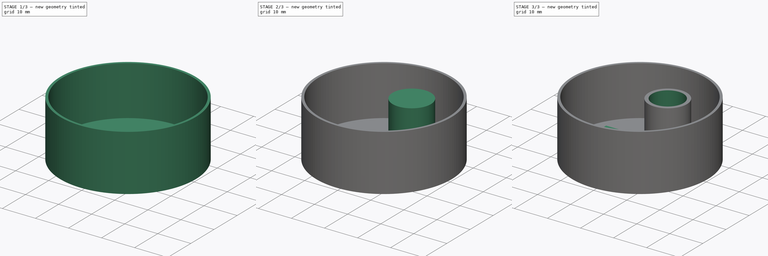
[diagram: build sequence overview — one tinted view per stage of 3, left to right]
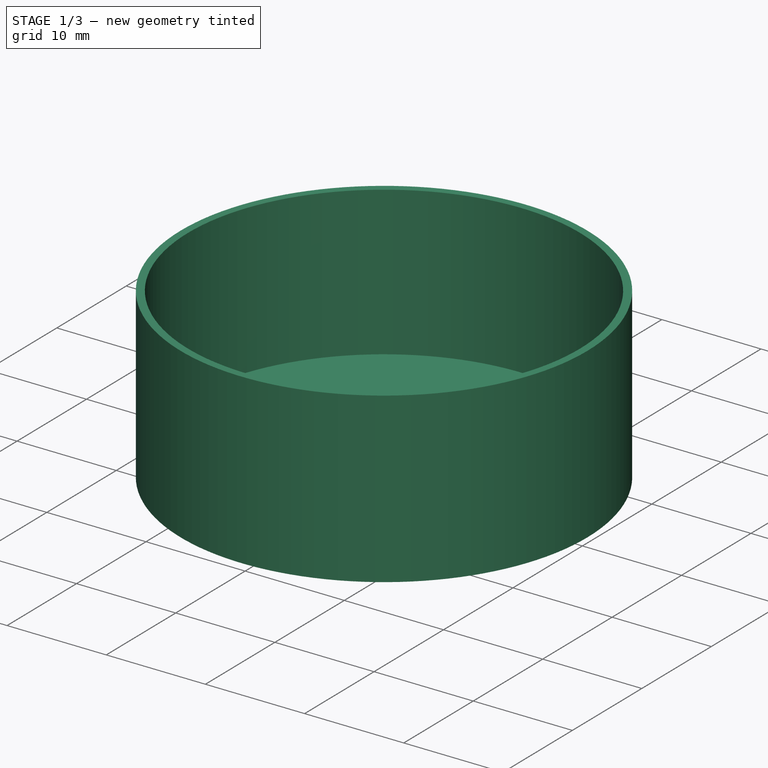
[diagram: stage 1 of 3 — iso view after this stage's code; geometry added in this stage tinted green]
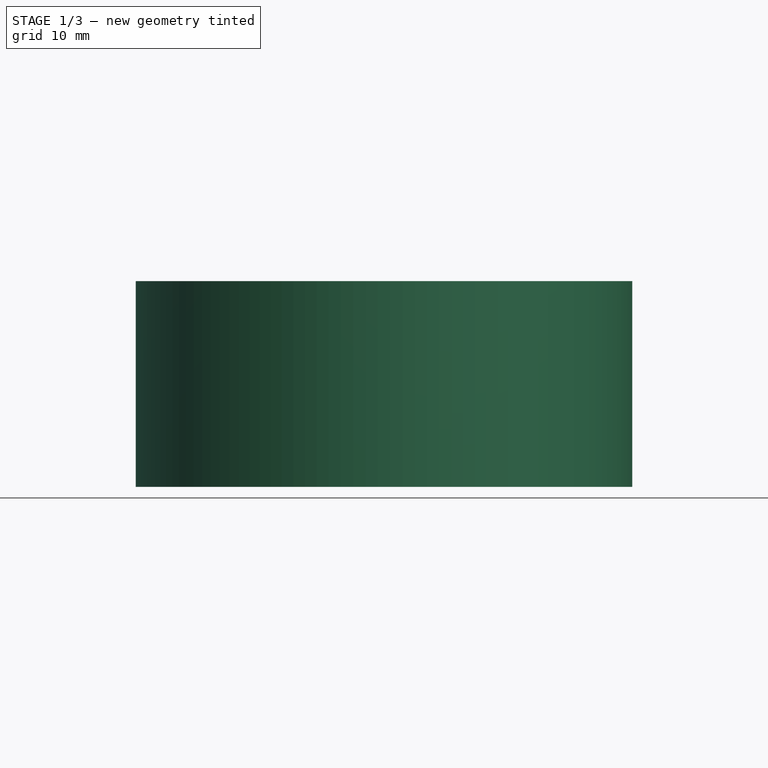
[diagram: stage 1 of 3 — front view after this stage's code; geometry added in this stage tinted green]
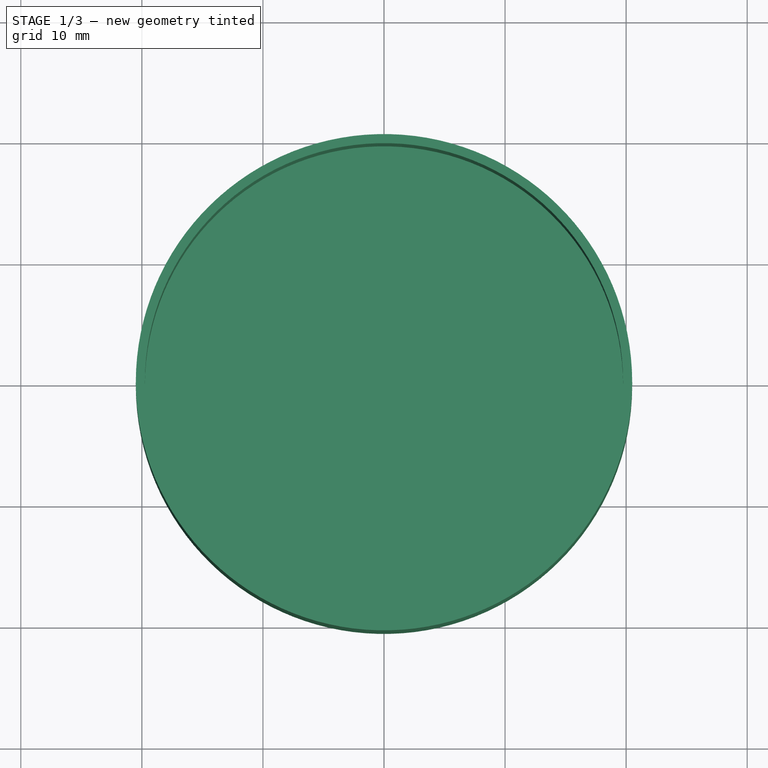
[diagram: stage 1 of 3 — top view after this stage's code; geometry added in this stage tinted green]
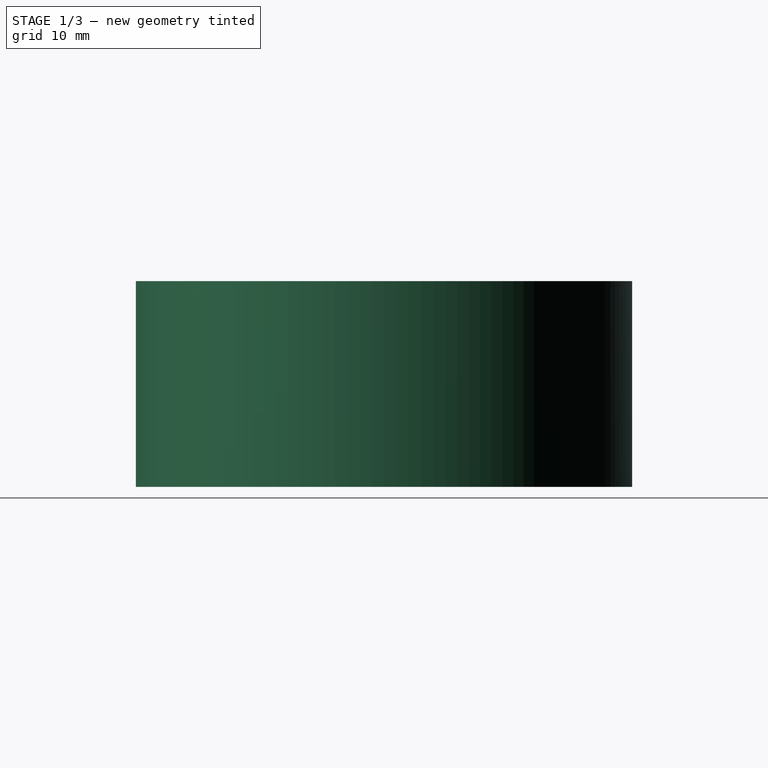
[diagram: stage 1 of 3 — right view after this stage's code; geometry added in this stage tinted green]
FCSTD DOCUMENT  (FreeCAD 0.19R)
Label: tampa_garrafao
License: All rights reserved
LicenseURL: http://en.wikipedia.org/wiki/All_rights_reserved
objects: Sketcher::SketchObject×6, PartDesign::Pad×3, PartDesign::Pocket×3, PartDesign::Body×1
note: 19 computed .brp shape members not serialized (recipe doc carries the construction recipe); baked Part::Feature solids carry a one-line shape summary decoded from their .brp

FEATURE [Sketcher::SketchObject] Sketch
  FullyConstrained = true
  MapMode = 5
  Support = -> [XY_Plane]
  sketch-geometry (1):
    g0: Circle CenterX=0 CenterY=0 CenterZ=0 NormalX=0 NormalY=0 NormalZ=1 AngleXU=0 Radius=20.5
  constraints (2):
    c: Coincident(g0,g-1)
    c: Diameter(g0) = 41
FEATURE [PartDesign::Pad] Pad
  Direction = (1,1,1)
  Length = 17
  Length2 = 100
  Profile = -> Sketch
  Type = 0
FEATURE [Sketcher::SketchObject] Sketch001
  FullyConstrained = true
  MapMode = 5
  Placement = pos=(0,0,17) rot=(0,0,1;0rad)
  Support = -> [Pad]
  sketch-geometry (1):
    g0: Circle CenterX=0 CenterY=0 CenterZ=0 NormalX=0 NormalY=0 NormalZ=1 AngleXU=0 Radius=19.75
  constraints (2):
    c: Coincident(g0,g-1)
    c: Diameter(g0) = 39.5
FEATURE [PartDesign::Pocket] Pocket
  BaseFeature = -> Pad
  Length = 15
  Length2 = 100
  Profile = -> Sketch001
  Type = 0
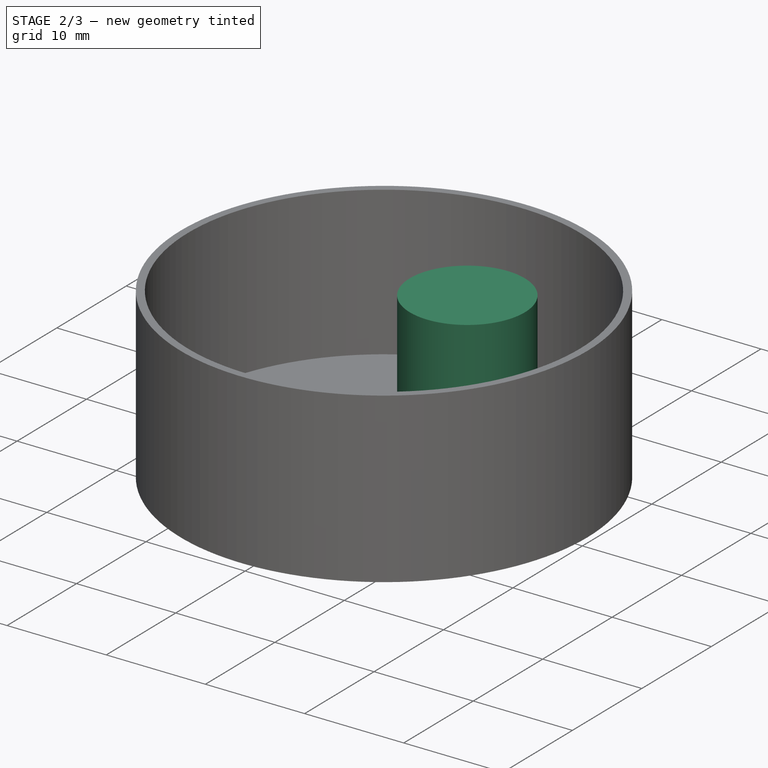
[diagram: stage 2 of 3 — iso view after this stage's code; geometry added in this stage tinted green]
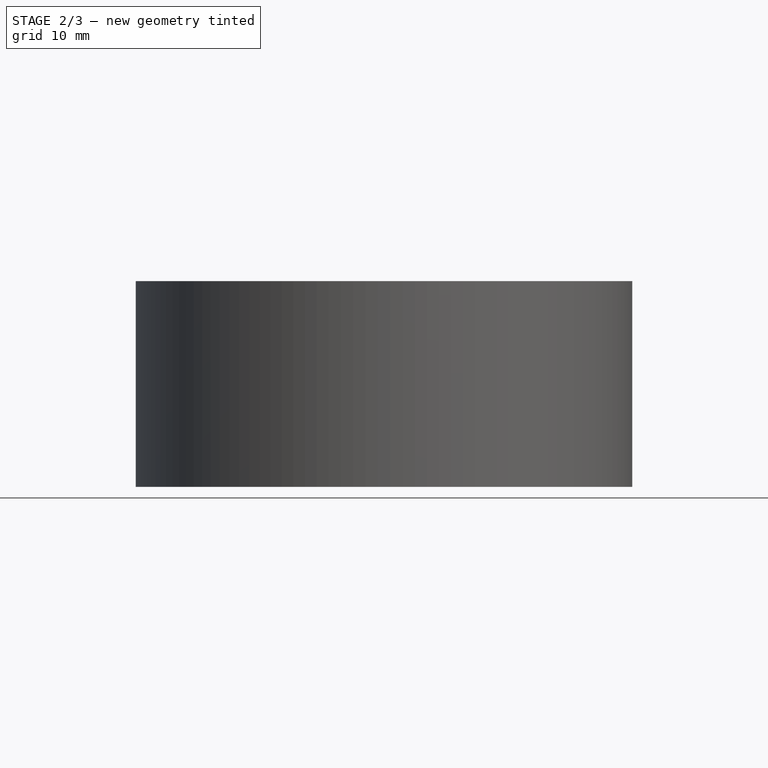
[diagram: stage 2 of 3 — front view after this stage's code; geometry added in this stage tinted green]
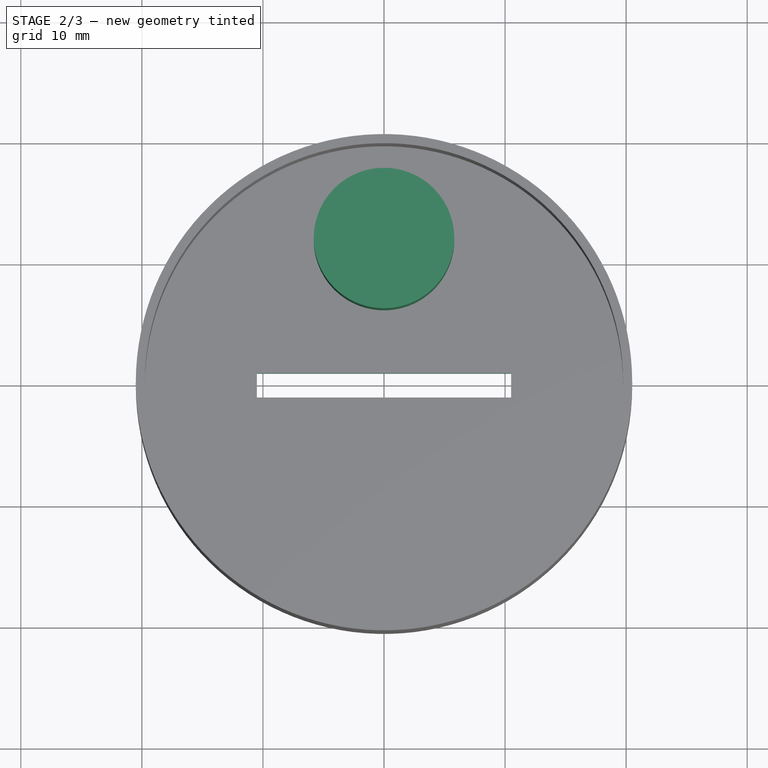
[diagram: stage 2 of 3 — top view after this stage's code; geometry added in this stage tinted green]
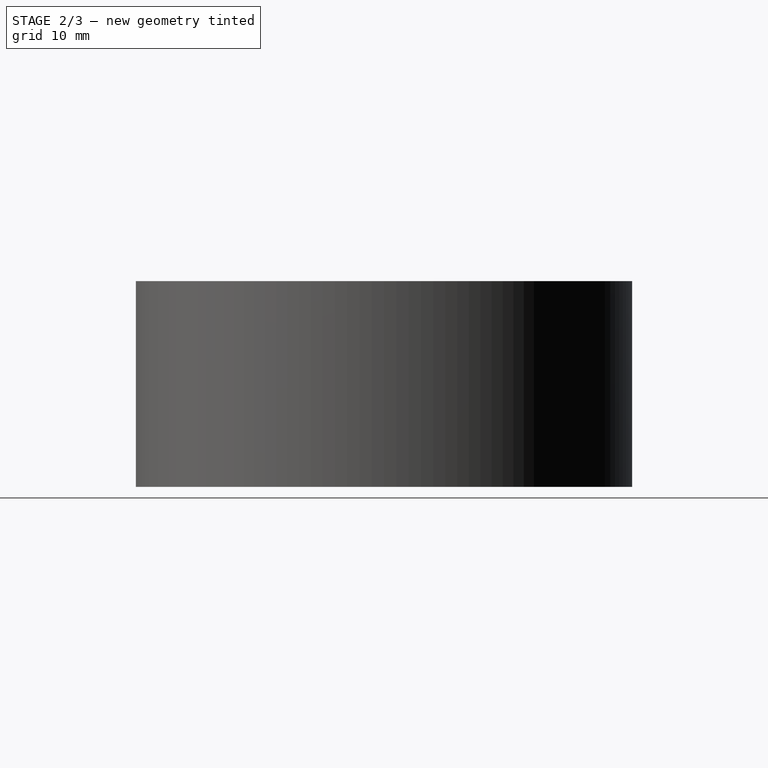
[diagram: stage 2 of 3 — right view after this stage's code; geometry added in this stage tinted green]
FEATURE [Sketcher::SketchObject] Sketch002
  FullyConstrained = false
  MapMode = 5
  Placement = pos=(0,0,2) rot=(0,0,1;0rad)
  Support = -> [Pocket]
  sketch-geometry (4):
    g0: LineSegment StartX=-10.5 StartY=1 StartZ=0 EndX=10.5 EndY=1 EndZ=0
    g1: LineSegment StartX=10.5 StartY=1 StartZ=0 EndX=10.5 EndY=-1 EndZ=0
    g2: LineSegment StartX=10.5 StartY=-1 StartZ=0 EndX=-10.5 EndY=-1 EndZ=0
    g3: LineSegment StartX=-10.5 StartY=-1 StartZ=0 EndX=-10.5 EndY=1 EndZ=0
  constraints (8):
    c: Coincident(g0,g1)
    c: Coincident(g1,g2)
    c: Coincident(g2,g3)
    c: Coincident(g3,g0)
    c: Horizontal(g0)
    c: Horizontal(g2)
    c: Vertical(g1)
    c: Vertical(g3)
FEATURE [PartDesign::Pocket] Pocket001
  BaseFeature = -> Pocket
  Length = 5
  Length2 = 100
  Profile = -> Sketch002
  Type = 0
FEATURE [Sketcher::SketchObject] Sketch003
  FullyConstrained = false
  MapMode = 5
  Placement = pos=(0,0,2) rot=(0,0,1;0rad)
  Support = -> [Pocket001]
  sketch-geometry (1):
    g0: Circle CenterX=0 CenterY=12 CenterZ=0 NormalX=0 NormalY=0 NormalZ=1 AngleXU=0 Radius=5.8
  constraints (2):
    c: PointOnObject(g0,g-2)
    c: Diameter(g0) = 11.6
FEATURE [PartDesign::Pad] Pad001
  BaseFeature = -> Pocket001
  Direction = (1,1,1)
  Length = 10
  Length2 = 100
  Profile = -> Sketch003
  Type = 0
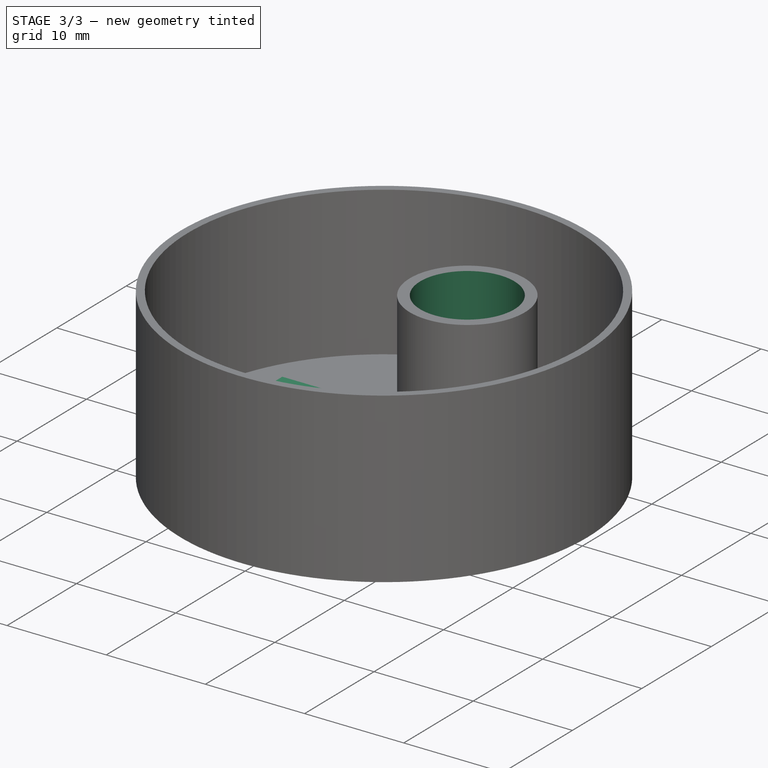
[diagram: stage 3 of 3 — iso view after this stage's code; geometry added in this stage tinted green]
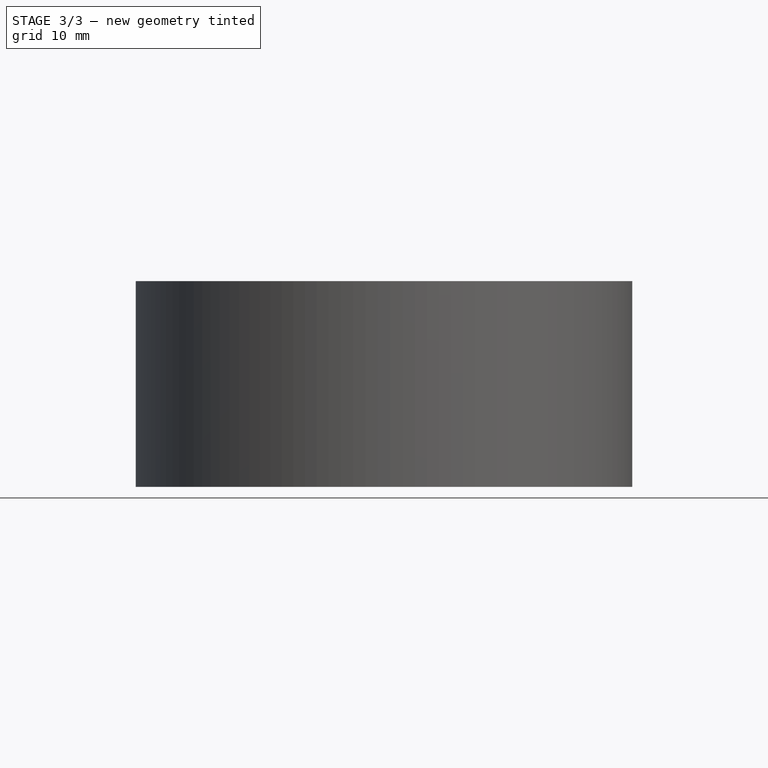
[diagram: stage 3 of 3 — front view after this stage's code; geometry added in this stage tinted green]
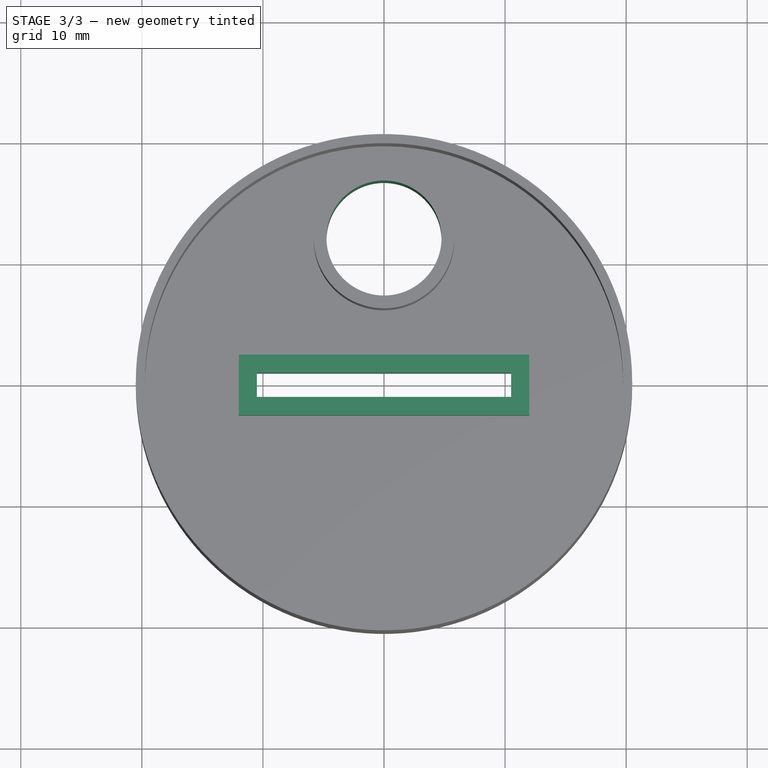
[diagram: stage 3 of 3 — top view after this stage's code; geometry added in this stage tinted green]
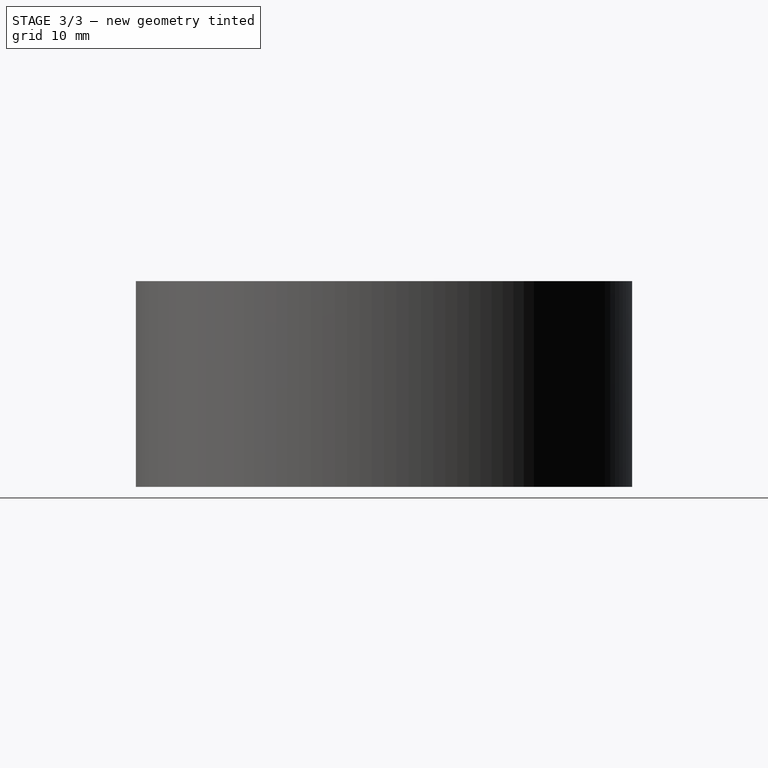
[diagram: stage 3 of 3 — right view after this stage's code; geometry added in this stage tinted green]
FEATURE [Sketcher::SketchObject] Sketch004
  FullyConstrained = false
  MapMode = 5
  Placement = pos=(0,0,12) rot=(0,0,1;0rad)
  Support = -> [Pad001]
  sketch-geometry (1):
    g0: Circle CenterX=0 CenterY=12 CenterZ=0 NormalX=0 NormalY=0 NormalZ=1 AngleXU=0 Radius=4.75
  constraints (2):
    c: PointOnObject(g0,g-2)
    c: Diameter(g0) = 9.5
FEATURE [PartDesign::Pocket] Pocket002
  BaseFeature = -> Pad001
  Length = 13
  Length2 = 100
  Profile = -> Sketch004
  Type = 0
FEATURE [Sketcher::SketchObject] Sketch005
  FullyConstrained = false
  MapMode = 5
  Placement = pos=(0,0,2) rot=(0,0,1;0rad)
  Support = -> [Pocket002]
  sketch-geometry (16):
    g0: LineSegment StartX=-12 StartY=2.5 StartZ=0 EndX=10.5 EndY=2.5 EndZ=0
    g1: LineSegment StartX=10.5 StartY=2.5 StartZ=0 EndX=10.5 EndY=1 EndZ=0
    g2: LineSegment StartX=10.5 StartY=1 StartZ=0 EndX=-12 EndY=1 EndZ=0
    g3: LineSegment StartX=-12 StartY=1 StartZ=0 EndX=-12 EndY=2.5 EndZ=0
    g4: LineSegment StartX=12 StartY=2.5 StartZ=0 EndX=10.5 EndY=2.5 EndZ=0
    g5: LineSegment StartX=10.5 StartY=2.5 StartZ=0 EndX=10.5 EndY=-1 EndZ=0
    g6: LineSegment StartX=10.5 StartY=-1 StartZ=0 EndX=12 EndY=-1 EndZ=0
    g7: LineSegment StartX=12 StartY=-1 StartZ=0 EndX=12 EndY=2.5 EndZ=0
    g8: LineSegment StartX=12 StartY=-2.5 StartZ=0 EndX=-10.5 EndY=-2.5 EndZ=0
    g9: LineSegment StartX=-10.5 StartY=-2.5 StartZ=0 EndX=-10.5 EndY=-1 EndZ=0
    g10: LineSegment StartX=-10.5 StartY=-1 StartZ=0 EndX=12 EndY=-1 EndZ=0
    g11: LineSegment StartX=12 StartY=-1 StartZ=0 EndX=12 EndY=-2.5 EndZ=0
    g12: LineSegment StartX=-12 StartY=-2.5 StartZ=0 EndX=-10.5 EndY=-2.5 EndZ=0
    g13: LineSegment StartX=-10.5 StartY=-2.5 StartZ=0 EndX=-10.5 EndY=1 EndZ=0
    g14: LineSegment StartX=-10.5 StartY=1 StartZ=0 EndX=-12 EndY=1 EndZ=0
    g15: LineSegment StartX=-12 StartY=1 StartZ=0 EndX=-12 EndY=-2.5 EndZ=0
  constraints (33):
    c: Coincident(g0,g1)
    c: Coincident(g1,g2)
    c: Coincident(g2,g3)
    c: Coincident(g3,g0)
    c: Horizontal(g0)
    c: Horizontal(g2)
    c: Vertical(g1)
    c: Vertical(g3)
    c: Coincident(g4,g5)
    c: Coincident(g5,g6)
    c: Coincident(g6,g7)
    c: Coincident(g7,g4)
    c: Horizontal(g4)
    c: Horizontal(g6)
    c: Vertical(g5)
    c: Vertical(g7)
    c: Coincident(g8,g9)
    c: Coincident(g9,g10)
    c: Coincident(g10,g11)
    c: Coincident(g11,g8)
    c: Horizontal(g8)
    c: Horizontal(g10)
    c: Vertical(g9)
    c: Vertical(g11)
    c: Coincident(g12,g13)
    c: Coincident(g13,g14)
    c: Coincident(g14,g15)
    c: Coincident(g15,g12)
    c: Horizontal(g12)
    c: Horizontal(g14)
    c: Vertical(g13)
    c: Vertical(g15)
    c: PointOnObject(g13,g2)
FEATURE [PartDesign::Pad] Pad002
  BaseFeature = -> Pocket002
  Direction = (1,1,1)
  Length = 3
  Length2 = 100
  Profile = -> Sketch005
  Type = 0
FEATURE [PartDesign::Body] Body
  Group = -> [Sketch,Pad,Sketch001,Pocket,Sketch002,Pocket001,Sketch003,Pad001,Sketch004,Pocket002,Sketch005,Pad002]
  Origin = -> Origin
  Tip = -> Pad002
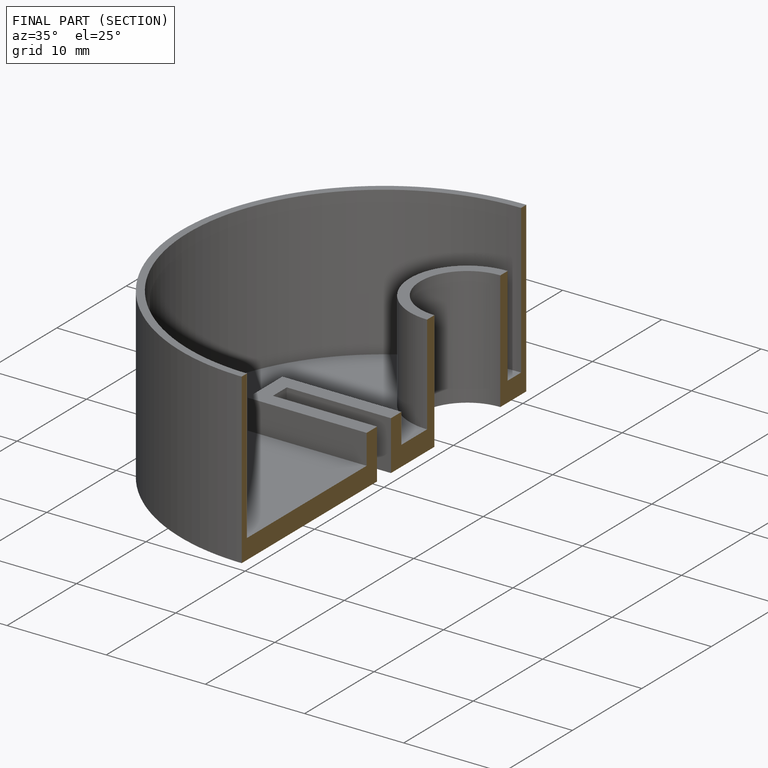
[diagram: finished part — half-section view (interior)]
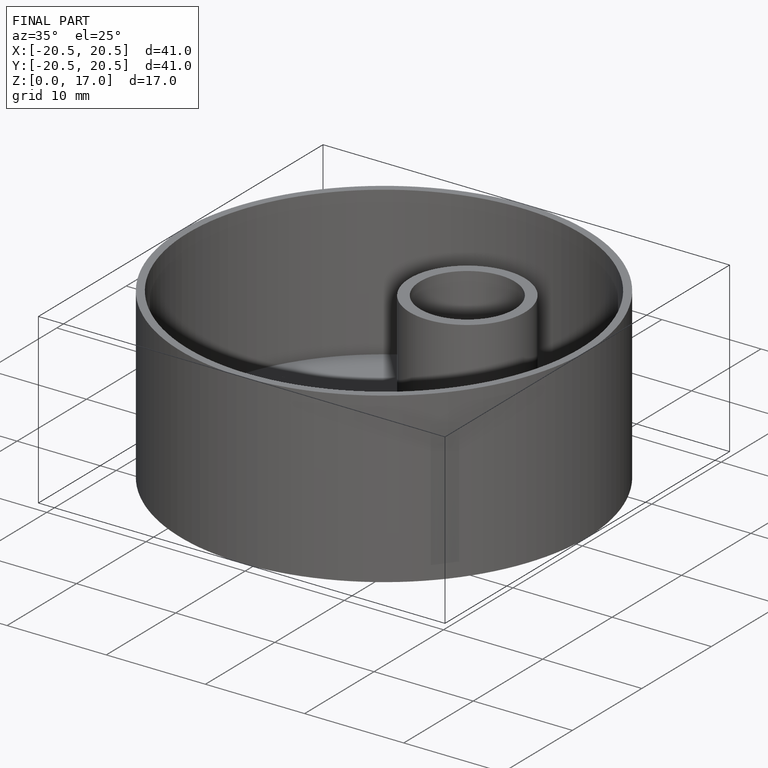
[diagram: finished part — iso view with bounding-box wireframe]
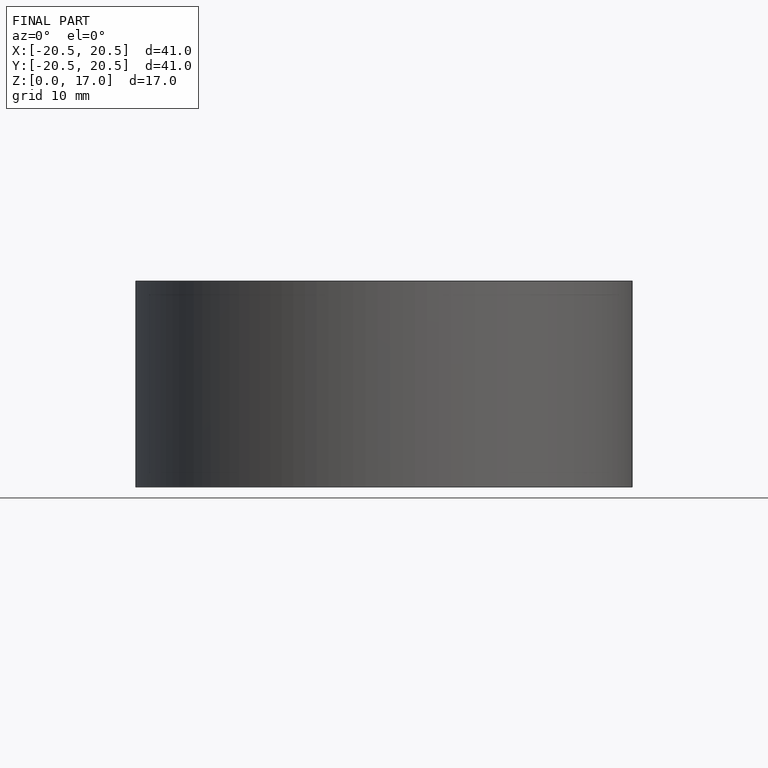
[diagram: finished part — front view with bounding-box wireframe]
